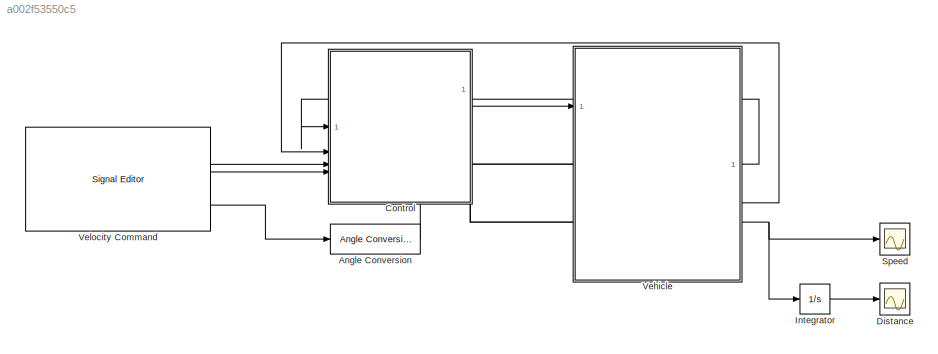
MODEL slx_a002f53550c5
KIND model
CONFIG AbsTol = auto
CONFIG EnableMultiTasking = off
CONFIG FixedStep = auto
CONFIG MaxStep = auto
CONFIG MinStep = auto
CONFIG RelTol = 1e-3
CONFIG SampleTimeConstraint = Unconstrained
CONFIG SolverName = VariableStepAuto
CONFIG StartTime = 0.0
CONFIG StopTime = 20
BLOCK [Reference] Angle Conversion  REF=aerolibconvert2/Angle Conversion
  SourceBlock = aerolibconvert2/Angle Conversion
  SourceType = Angle Conversion
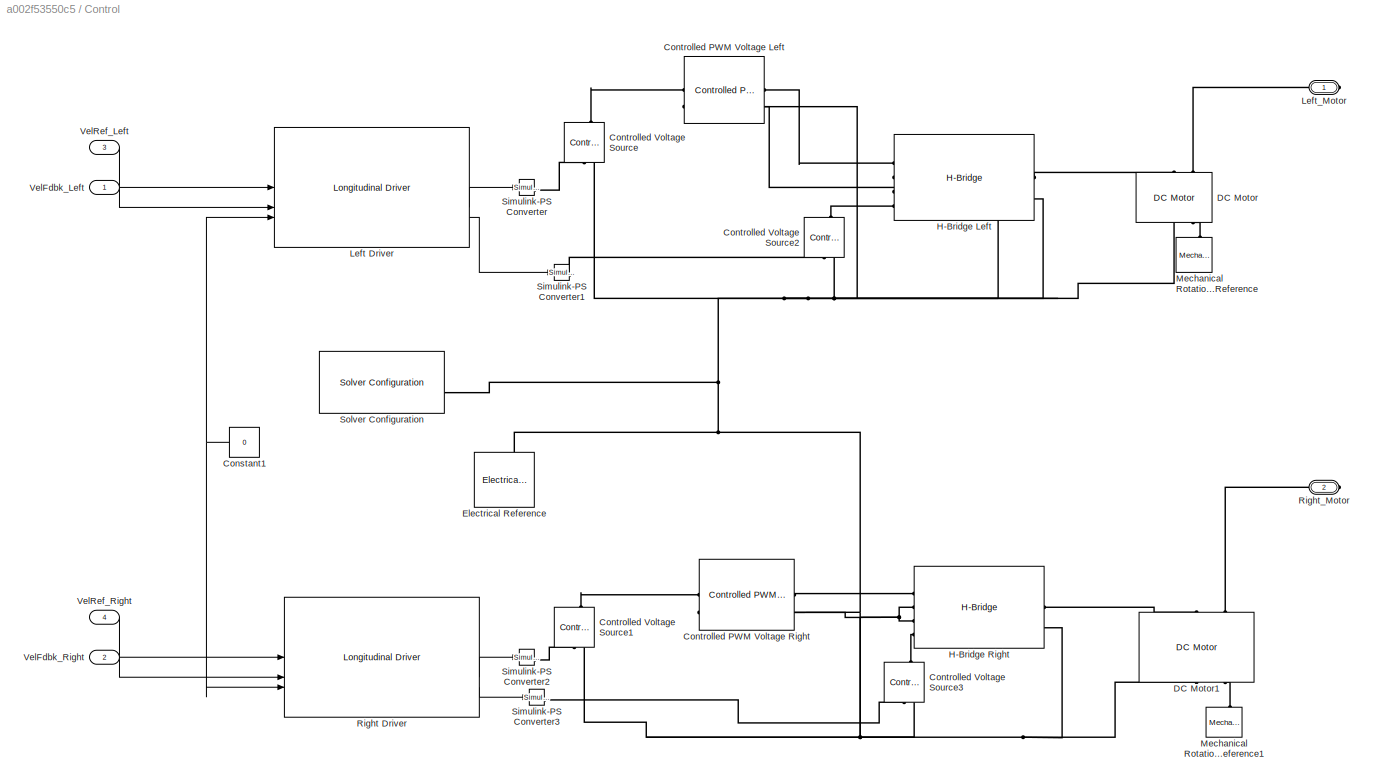
BLOCK [SubSystem] Control
BLOCK [Constant] Control/Constant1
  Value = 0
BLOCK [Reference] Control/Controlled PWM Voltage Left   REF=ee_lib/Integrated Circuits/Controlled PWM
Voltage
  SourceBlock = ee_lib/Integrated Circuits/Controlled PWM\nVoltage
  SourceType = Controlled PWM\nVoltage
BLOCK [Reference] Control/Controlled PWM Voltage Right  REF=ee_lib/Integrated Circuits/Controlled PWM
Voltage
  SourceBlock = ee_lib/Integrated Circuits/Controlled PWM\nVoltage
  SourceType = Controlled PWM\nVoltage
BLOCK [Reference] Control/Controlled Voltage Source  REF=fl_lib/Electrical/Electrical Sources/Controlled Voltage
Source
  NameLocation = right
  SourceBlock = fl_lib/Electrical/Electrical Sources/Controlled Voltage\nSource
  SourceType = Controlled Voltage\nSource
BLOCK [Reference] Control/Controlled Voltage Source1  REF=fl_lib/Electrical/Electrical Sources/Controlled Voltage
Source
  NameLocation = right
  SourceBlock = fl_lib/Electrical/Electrical Sources/Controlled Voltage\nSource
  SourceType = Controlled Voltage\nSource
BLOCK [Reference] Control/Controlled Voltage Source2  REF=fl_lib/Electrical/Electrical Sources/Controlled Voltage
Source
  NameLocation = right
  SourceBlock = fl_lib/Electrical/Electrical Sources/Controlled Voltage\nSource
  SourceType = Controlled Voltage\nSource
BLOCK [Reference] Control/Controlled Voltage Source3  REF=fl_lib/Electrical/Electrical Sources/Controlled Voltage
Source
  NameLocation = right
  SourceBlock = fl_lib/Electrical/Electrical Sources/Controlled Voltage\nSource
  SourceType = Controlled Voltage\nSource
BLOCK [Reference] Control/DC Motor  REF=ee_lib/Electromechanical/Brushed Motors/DC Motor
  NameLocation = right
  SourceBlock = ee_lib/Electromechanical/Brushed Motors/DC Motor
  SourceType = DC Motor
BLOCK [Reference] Control/DC Motor1  REF=ee_lib/Electromechanical/Brushed Motors/DC Motor
  NameLocation = right
  SourceBlock = ee_lib/Electromechanical/Brushed Motors/DC Motor
  SourceType = DC Motor
BLOCK [Reference] Control/Electrical Reference  REF=fl_lib/Electrical/Electrical Elements/Electrical Reference
  NameLocation = right
  SourceBlock = fl_lib/Electrical/Electrical Elements/Electrical Reference
  SourceType = Electrical Reference
BLOCK [Reference] Control/H-Bridge Left  REF=ee_lib/Semiconductors &
Converters/Converters/H-Bridge
  SourceBlock = ee_lib/Semiconductors &\nConverters/Converters/H-Bridge
  SourceType = H-Bridge
BLOCK [Reference] Control/H-Bridge Right  REF=ee_lib/Semiconductors &
Converters/Converters/H-Bridge
  SourceBlock = ee_lib/Semiconductors &\nConverters/Converters/H-Bridge
  SourceType = H-Bridge
BLOCK [Reference] Control/Left Driver  REF=autolibshared/Longitudinal Driver
  LibrarySourceBlock = autolibscenario/Longitudinal Driver
  SourceBlock = autolibshared/Longitudinal Driver
  SourceType = Longitudinal Driver
BLOCK [PMIOPort] Control/Left_Motor
  Side = Right
BLOCK [Reference] Control/Mechanical Rotational Reference  REF=fl_lib/Mechanical/Rotational Elements/Mechanical
Rotational Reference
  NameLocation = right
  SourceBlock = fl_lib/Mechanical/Rotational Elements/Mechanical\nRotational Reference
  SourceType = Mechanical\nRotational Reference
BLOCK [Reference] Control/Mechanical Rotational Reference1  REF=fl_lib/Mechanical/Rotational Elements/Mechanical
Rotational Reference
  NameLocation = right
  SourceBlock = fl_lib/Mechanical/Rotational Elements/Mechanical\nRotational Reference
  SourceType = Mechanical\nRotational Reference
BLOCK [Reference] Control/Right Driver  REF=autolibshared/Longitudinal Driver
  LibrarySourceBlock = autolibscenario/Longitudinal Driver
  SourceBlock = autolibshared/Longitudinal Driver
  SourceType = Longitudinal Driver
BLOCK [PMIOPort] Control/Right_Motor
  Port = 2
  Side = Right
BLOCK [Reference] Control/Simulink-PS Converter  REF=nesl_utility/Simulink-PS
Converter
  SourceBlock = nesl_utility/Simulink-PS\nConverter
  SourceType = Simulink-PS\nConverter
BLOCK [Reference] Control/Simulink-PS Converter1  REF=nesl_utility/Simulink-PS
Converter
  SourceBlock = nesl_utility/Simulink-PS\nConverter
  SourceType = Simulink-PS\nConverter
BLOCK [Reference] Control/Simulink-PS Converter2  REF=nesl_utility/Simulink-PS
Converter
  SourceBlock = nesl_utility/Simulink-PS\nConverter
  SourceType = Simulink-PS\nConverter
BLOCK [Reference] Control/Simulink-PS Converter3  REF=nesl_utility/Simulink-PS
Converter
  SourceBlock = nesl_utility/Simulink-PS\nConverter
  SourceType = Simulink-PS\nConverter
BLOCK [Reference] Control/Solver Configuration  REF=nesl_utility/Solver
Configuration
  SourceBlock = nesl_utility/Solver\nConfiguration
  SourceType = Solver\nConfiguration
BLOCK [Inport] Control/VelFdbk_Left
BLOCK [Inport] Control/VelFdbk_Right
  Port = 2
BLOCK [Inport] Control/VelRef_Left
  Port = 3
BLOCK [Inport] Control/VelRef_Right
  Port = 4
BLOCK [Scope] Distance
  Floating = off
  NumInputPorts = 1
  ScopeSpecificationString = Simulink.scopes.TimeScopeBlockCfg('CurrentConfiguration', extmgr.ConfigurationSet(extmgr.Configuration('Core','General UI',true),extmgr.Configuration('Core','Source UI',true),extmgr.Configuration('Sources','WiredSimulink',true,'DataLoggingSaveFormat','Array','DataLoggingDecimation','1','DataLoggingVariableName','ScopeData1'),extmgr.Configuration('Visuals','Time Domain',true,'SerializedDisplays',{s...<+1690ch>
BLOCK [Integrator] Integrator
BLOCK [Scope] Speed
  Floating = off
  NumInputPorts = 1
  ScopeSpecificationString = Simulink.scopes.TimeScopeBlockCfg('CurrentConfiguration', extmgr.ConfigurationSet(extmgr.Configuration('Core','General UI',true),extmgr.Configuration('Core','Source UI',true),extmgr.Configuration('Sources','WiredSimulink',true,'DataLoggingSaveFormat','Array','DataLoggingLimitDataPoints',true,'DataLoggingDecimation','1'),extmgr.Configuration('Visuals','Time Domain',true,'TimeAxisLabels','All','Seri...<+1718ch>
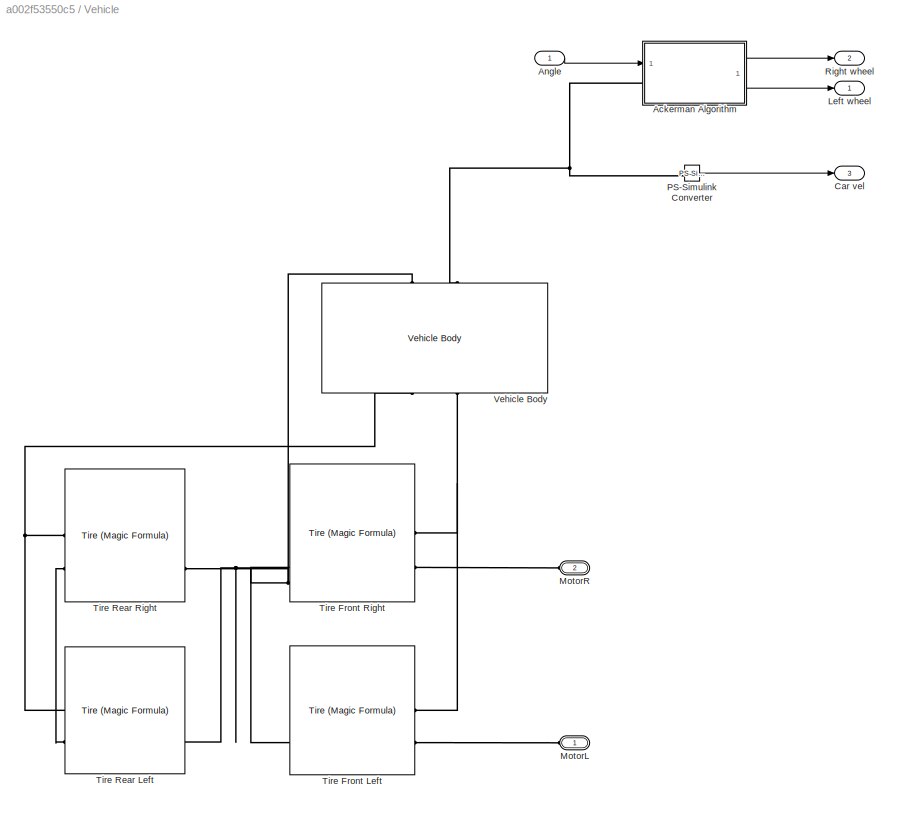
BLOCK [SubSystem] Vehicle
  PortSchema = {"entries":[{"content":{"sides":[{"content":{"connectorIds":["LConn1","LConn2","In1"]},"type":"ConnectorPlacement.EquallySpacedRectSide","uuid":"082b3fe0-a113-412c-9882-f53ae567eb39"},{"content":{"connectorIds":["Out1","Out2","Out3"],"side":"RIGHT"},"type":"ConnectorPlacement.EquallySpacedRectSide","uuid":"5c042dfb-301d-406a-bf9d-f1d543138450"},{"content":{"side":"TOP"},"type":"ConnectorPlacement....<+254ch>
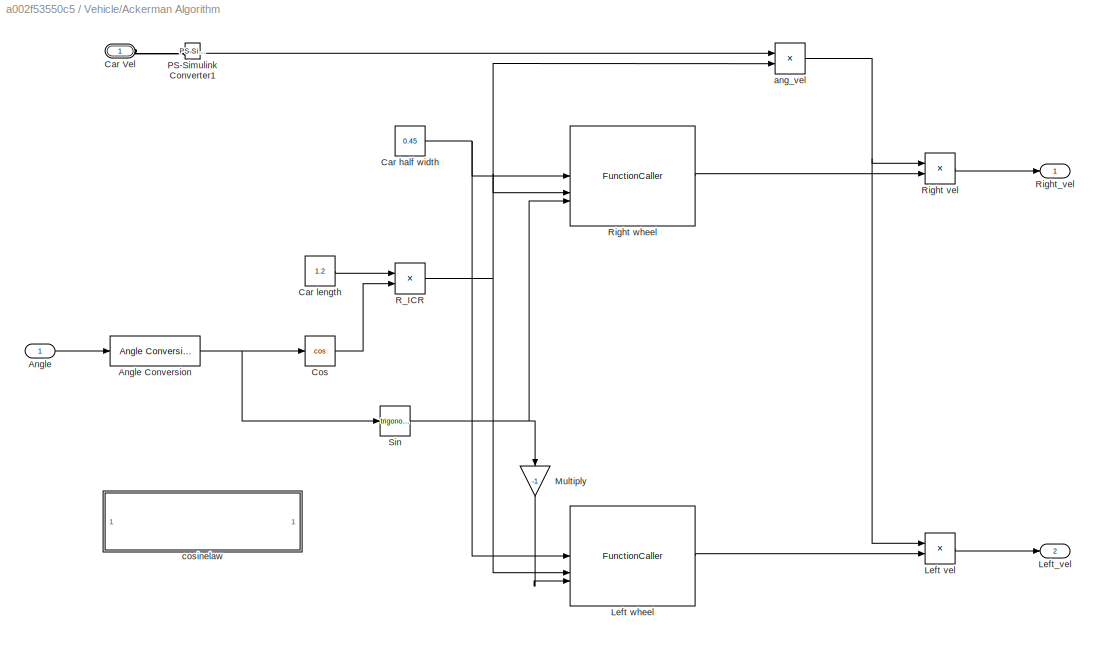
BLOCK [SubSystem] Vehicle/Ackerman Algorithm
BLOCK [PMIOPort] Vehicle/Ackerman Algorithm/ Car Vel
  Side = Left
BLOCK [Inport] Vehicle/Ackerman Algorithm/Angle
BLOCK [Reference] Vehicle/Ackerman Algorithm/Angle Conversion  REF=aerolibconvert2/Angle Conversion
  SourceBlock = aerolibconvert2/Angle Conversion
  SourceType = Angle Conversion
BLOCK [Constant] Vehicle/Ackerman Algorithm/Car half width
  Value = 0.45
BLOCK [Constant] Vehicle/Ackerman Algorithm/Car length
  Value = 1.2
BLOCK [Trigonometry] Vehicle/Ackerman Algorithm/Cos
  Operator = cos
BLOCK [Product] Vehicle/Ackerman Algorithm/Left vel
BLOCK [FunctionCaller] Vehicle/Ackerman Algorithm/Left wheel
  FunctionPrototype = y = cosinelaw(l1,l2,cos_angle)
  InputArgumentSpecifications = <Enter example>
  OutputArgumentSpecifications = <Enter example>
BLOCK [Outport] Vehicle/Ackerman Algorithm/Left_vel
  Port = 2
BLOCK [Gain] Vehicle/Ackerman Algorithm/Multiply
  Gain = -1
  NameLocation = left
BLOCK [Reference] Vehicle/Ackerman Algorithm/PS-Simulink Converter1  REF=nesl_utility/PS-Simulink
Converter
  SourceBlock = nesl_utility/PS-Simulink\nConverter
  SourceType = PS-Simulink\nConverter
BLOCK [Product] Vehicle/Ackerman Algorithm/R_ICR
  Inputs = */
BLOCK [Product] Vehicle/Ackerman Algorithm/Right vel
BLOCK [FunctionCaller] Vehicle/Ackerman Algorithm/Right wheel
  FunctionPrototype = y = cosinelaw(l1,l2,cos_angle)
  InputArgumentSpecifications = <Enter example>
  OutputArgumentSpecifications = <Enter example>
BLOCK [Outport] Vehicle/Ackerman Algorithm/Right_vel
BLOCK [Trigonometry] Vehicle/Ackerman Algorithm/Sin
BLOCK [Product] Vehicle/Ackerman Algorithm/ang_vel
  Inputs = */
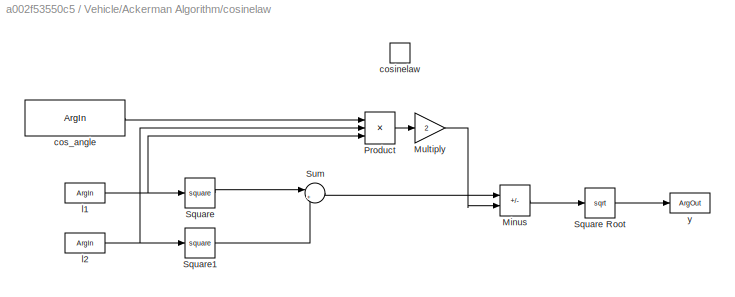
BLOCK [SubSystem] Vehicle/Ackerman Algorithm/cosinelaw
  TreatAsAtomicUnit = on
BLOCK [Sum] Vehicle/Ackerman Algorithm/cosinelaw/Minus
  IconShape = rectangular
  Inputs = +-
BLOCK [Gain] Vehicle/Ackerman Algorithm/cosinelaw/Multiply
  Gain = 2
BLOCK [Product] Vehicle/Ackerman Algorithm/cosinelaw/Product
  Inputs = 3
BLOCK [Math] Vehicle/Ackerman Algorithm/cosinelaw/Square
  Operator = square
BLOCK [Sqrt] Vehicle/Ackerman Algorithm/cosinelaw/Square Root
BLOCK [Math] Vehicle/Ackerman Algorithm/cosinelaw/Square1
  Operator = square
BLOCK [Sum] Vehicle/Ackerman Algorithm/cosinelaw/Sum
  Inputs = |++
BLOCK [ArgIn] Vehicle/Ackerman Algorithm/cosinelaw/cos_angle
  ArgumentName = cos_angle
  DisableCoverage = on
  Port = 3
BLOCK [TriggerPort] Vehicle/Ackerman Algorithm/cosinelaw/cosinelaw
  FunctionName = cosinelaw
  FunctionVisibility = scoped
  IsSimulinkFunction = on
  StatesWhenEnabling = held
  TriggerType = function-call
  VariantControl = (inherit)
BLOCK [ArgIn] Vehicle/Ackerman Algorithm/cosinelaw/l1
  ArgumentName = l1
  DisableCoverage = on
BLOCK [ArgIn] Vehicle/Ackerman Algorithm/cosinelaw/l2
  ArgumentName = l2
  DisableCoverage = on
  Port = 2
BLOCK [ArgOut] Vehicle/Ackerman Algorithm/cosinelaw/y
  ArgumentName = y
  DisableCoverage = on
BLOCK [Inport] Vehicle/Angle
BLOCK [Outport] Vehicle/Car vel
  Port = 3
BLOCK [Outport] Vehicle/Left wheel
BLOCK [PMIOPort] Vehicle/MotorL
  Side = Left
BLOCK [PMIOPort] Vehicle/MotorR
  Port = 2
  Side = Left
BLOCK [Reference] Vehicle/PS-Simulink Converter  REF=nesl_utility/PS-Simulink
Converter
  SourceBlock = nesl_utility/PS-Simulink\nConverter
  SourceType = PS-Simulink\nConverter
BLOCK [Outport] Vehicle/Right wheel
  Port = 2
BLOCK [Reference] Vehicle/Tire Front Left  REF=sdl_lib/Tires & Vehicles/Tire (Magic Formula)
  SourceBlock = sdl_lib/Tires & Vehicles/Tire (Magic Formula)
  SourceType = Tire (Magic Formula)
BLOCK [Reference] Vehicle/Tire Front Right  REF=sdl_lib/Tires & Vehicles/Tire (Magic Formula)
  SourceBlock = sdl_lib/Tires & Vehicles/Tire (Magic Formula)
  SourceType = Tire (Magic Formula)
BLOCK [Reference] Vehicle/Tire Rear Left  REF=sdl_lib/Tires & Vehicles/Tire (Magic Formula)
  SourceBlock = sdl_lib/Tires & Vehicles/Tire (Magic Formula)
  SourceType = Tire (Magic Formula)
BLOCK [Reference] Vehicle/Tire Rear Right  REF=sdl_lib/Tires & Vehicles/Tire (Magic Formula)
  SourceBlock = sdl_lib/Tires & Vehicles/Tire (Magic Formula)
  SourceType = Tire (Magic Formula)
BLOCK [Reference] Vehicle/Vehicle Body  REF=sdl_lib/Tires & Vehicles/Vehicle Body
  NameLocation = right
  SourceBlock = sdl_lib/Tires & Vehicles/Vehicle Body
  SourceType = Vehicle Body
BLOCK [Reference] Velocity Command  REF=SignalEditorBlockLib/Signal Editor
  LibrarySourceBlock = simulink/Sources/Signal Editor
  SourceBlock = SignalEditorBlockLib/Signal Editor
  SourceType = SignalEditor
  UserDataPersistent = on
LINE Angle Conversion:1 -> Vehicle:1
NET Control/Constant1:1 -> Control/Left Driver:3, Control/Right Driver:3
LINE Control/Left Driver:2 -> Control/Simulink-PS Converter:1
LINE Control/Left Driver:3 -> Control/Simulink-PS Converter1:1
LINE Control/Right Driver:2 -> Control/Simulink-PS Converter2:1
LINE Control/Right Driver:3 -> Control/Simulink-PS Converter3:1
LINE Control/VelFdbk_Left:1 -> Control/Left Driver:2
LINE Control/VelFdbk_Right:1 -> Control/Right Driver:2
LINE Control/VelRef_Left:1 -> Control/Left Driver:1
LINE Control/VelRef_Right:1 -> Control/Right Driver:1
LINE Integrator:1 -> Distance:1
NET Vehicle/Ackerman Algorithm/Angle Conversion:1 -> Vehicle/Ackerman Algorithm/Cos:1, Vehicle/Ackerman Algorithm/Sin:1
LINE Vehicle/Ackerman Algorithm/Angle:1 -> Vehicle/Ackerman Algorithm/Angle Conversion:1
NET Vehicle/Ackerman Algorithm/Car half width:1 -> Vehicle/Ackerman Algorithm/Left wheel:1, Vehicle/Ackerman Algorithm/Right wheel:1
LINE Vehicle/Ackerman Algorithm/Car length:1 -> Vehicle/Ackerman Algorithm/R_ICR:1
LINE Vehicle/Ackerman Algorithm/Cos:1 -> Vehicle/Ackerman Algorithm/R_ICR:2
LINE Vehicle/Ackerman Algorithm/Left vel:1 -> Vehicle/Ackerman Algorithm/Left_vel:1
LINE Vehicle/Ackerman Algorithm/Left wheel:1 -> Vehicle/Ackerman Algorithm/Left vel:2
LINE Vehicle/Ackerman Algorithm/Multiply:1 -> Vehicle/Ackerman Algorithm/Left wheel:3
LINE Vehicle/Ackerman Algorithm/PS-Simulink Converter1:1 -> Vehicle/Ackerman Algorithm/ang_vel:1
NET Vehicle/Ackerman Algorithm/R_ICR:1 -> Vehicle/Ackerman Algorithm/Left wheel:2, Vehicle/Ackerman Algorithm/Right wheel:2, Vehicle/Ackerman Algorithm/ang_vel:2
LINE Vehicle/Ackerman Algorithm/Right vel:1 -> Vehicle/Ackerman Algorithm/Right_vel:1
LINE Vehicle/Ackerman Algorithm/Right wheel:1 -> Vehicle/Ackerman Algorithm/Right vel:2
NET Vehicle/Ackerman Algorithm/Sin:1 -> Vehicle/Ackerman Algorithm/Multiply:1, Vehicle/Ackerman Algorithm/Right wheel:3
NET Vehicle/Ackerman Algorithm/ang_vel:1 -> Vehicle/Ackerman Algorithm/Left vel:1, Vehicle/Ackerman Algorithm/Right vel:1
LINE Vehicle/Ackerman Algorithm/cosinelaw/Minus:1 -> Vehicle/Ackerman Algorithm/cosinelaw/Square Root:1
LINE Vehicle/Ackerman Algorithm/cosinelaw/Multiply:1 -> Vehicle/Ackerman Algorithm/cosinelaw/Minus:2
LINE Vehicle/Ackerman Algorithm/cosinelaw/Product:1 -> Vehicle/Ackerman Algorithm/cosinelaw/Multiply:1
LINE Vehicle/Ackerman Algorithm/cosinelaw/Square Root:1 -> Vehicle/Ackerman Algorithm/cosinelaw/y:1
LINE Vehicle/Ackerman Algorithm/cosinelaw/Square1:1 -> Vehicle/Ackerman Algorithm/cosinelaw/Sum:2
LINE Vehicle/Ackerman Algorithm/cosinelaw/Square:1 -> Vehicle/Ackerman Algorithm/cosinelaw/Sum:1
LINE Vehicle/Ackerman Algorithm/cosinelaw/Sum:1 -> Vehicle/Ackerman Algorithm/cosinelaw/Minus:1
LINE Vehicle/Ackerman Algorithm/cosinelaw/cos_angle:1 -> Vehicle/Ackerman Algorithm/cosinelaw/Product:1
NET Vehicle/Ackerman Algorithm/cosinelaw/l1:1 -> Vehicle/Ackerman Algorithm/cosinelaw/Product:3, Vehicle/Ackerman Algorithm/cosinelaw/Square:1
NET Vehicle/Ackerman Algorithm/cosinelaw/l2:1 -> Vehicle/Ackerman Algorithm/cosinelaw/Product:2, Vehicle/Ackerman Algorithm/cosinelaw/Square1:1
LINE Vehicle/Ackerman Algorithm:1 -> Vehicle/Right wheel:1
LINE Vehicle/Ackerman Algorithm:2 -> Vehicle/Left wheel:1
LINE Vehicle/Angle:1 -> Vehicle/Ackerman Algorithm:1
LINE Vehicle/PS-Simulink Converter:1 -> Vehicle/Car vel:1
LINE Vehicle:1 -> Control:1
LINE Vehicle:2 -> Control:2
NET Vehicle:3 -> Integrator:1, Speed:1
LINE Velocity Command:1 -> Control:3
LINE Velocity Command:2 -> Control:4
LINE Velocity Command:3 -> Angle Conversion:1
PLINE Control/Controlled PWM Voltage Left :LConn1 -- Control/Controlled Voltage Source:LConn1
PNET net1: Control/Controlled PWM Voltage Left :LConn2 -- Control/Controlled PWM Voltage Left :RConn2 -- Control/Controlled PWM Voltage Right:LConn2 -- Control/Controlled PWM Voltage Right:RConn2 -- Control/Controlled Voltage Source1:RConn2 -- Control/Controlled Voltage Source2:RConn2 -- Control/Controlled Voltage Source3:RConn2 -- Control/Controlled Voltage Source:RConn2 -- Control/DC Motor1:RConn1 -- Control/DC Motor:RConn1 -- Control/Electrical Reference:LConn1 -- Control/H-Bridge Left:LConn2 -- Control/H-Bridge Left:LConn3 -- Control/H-Bridge Left:RConn2 -- Control/H-Bridge Right:LConn2 -- Control/H-Bridge Right:LConn3 -- Control/H-Bridge Right:RConn2 -- Control/Solver Configuration:RConn1
PLINE Control/Controlled PWM Voltage Left :RConn1 -- Control/H-Bridge Left:LConn1
PLINE Control/Controlled PWM Voltage Right:LConn1 -- Control/Controlled Voltage Source1:LConn1
PLINE Control/Controlled PWM Voltage Right:RConn1 -- Control/H-Bridge Right:LConn1
PLINE Control/Controlled Voltage Source1:RConn1 -- Control/Simulink-PS Converter2:RConn1
PLINE Control/Controlled Voltage Source2:LConn1 -- Control/H-Bridge Left:LConn4
PLINE Control/Controlled Voltage Source2:RConn1 -- Control/Simulink-PS Converter1:RConn1
PLINE Control/Controlled Voltage Source3:LConn1 -- Control/H-Bridge Right:LConn4
PLINE Control/Controlled Voltage Source3:RConn1 -- Control/Simulink-PS Converter3:RConn1
PLINE Control/Controlled Voltage Source:RConn1 -- Control/Simulink-PS Converter:RConn1
PLINE Control/DC Motor1:LConn1 -- Control/H-Bridge Right:RConn1
PLINE Control/DC Motor1:LConn2 -- Control/Right_Motor:RConn1
PLINE Control/DC Motor1:RConn2 -- Control/Mechanical Rotational Reference1:LConn1
PLINE Control/DC Motor:LConn1 -- Control/H-Bridge Left:RConn1
PLINE Control/DC Motor:LConn2 -- Control/Left_Motor:RConn1
PLINE Control/DC Motor:RConn2 -- Control/Mechanical Rotational Reference:LConn1
PLINE Control:RConn1 -- Vehicle:LConn1
PLINE Control:RConn2 -- Vehicle:LConn2
PLINE Vehicle/Ackerman Algorithm/ Car Vel:RConn1 -- Vehicle/Ackerman Algorithm/PS-Simulink Converter1:LConn1
PNET net2: Vehicle/Ackerman Algorithm:LConn1 -- Vehicle/PS-Simulink Converter:LConn1 -- Vehicle/Vehicle Body:LConn2
PLINE Vehicle/MotorL:RConn1 -- Vehicle/Tire Front Left:LConn2
PLINE Vehicle/MotorR:RConn1 -- Vehicle/Tire Front Right:LConn2
PNET net3: Vehicle/Tire Front Left:LConn1 -- Vehicle/Tire Front Right:LConn1 -- Vehicle/Vehicle Body:RConn2
PNET net4: Vehicle/Tire Front Left:RConn2 -- Vehicle/Tire Front Right:RConn2 -- Vehicle/Tire Rear Left:RConn2 -- Vehicle/Tire Rear Right:RConn2 -- Vehicle/Vehicle Body:LConn1
PNET net5: Vehicle/Tire Rear Left:LConn1 -- Vehicle/Tire Rear Right:LConn1 -- Vehicle/Vehicle Body:RConn1
PLINE Vehicle/Tire Rear Left:LConn2 -- Vehicle/Tire Rear Right:LConn2
note: NET lines group one-source signal fan-out (src -> all destinations, sorted); 1:1 wires keep LINE; PNET lines group multi-terminal physical nets as a canonical sorted terminal list (undirected conserving connections); 2-terminal nets keep the pairwise PLINE form
